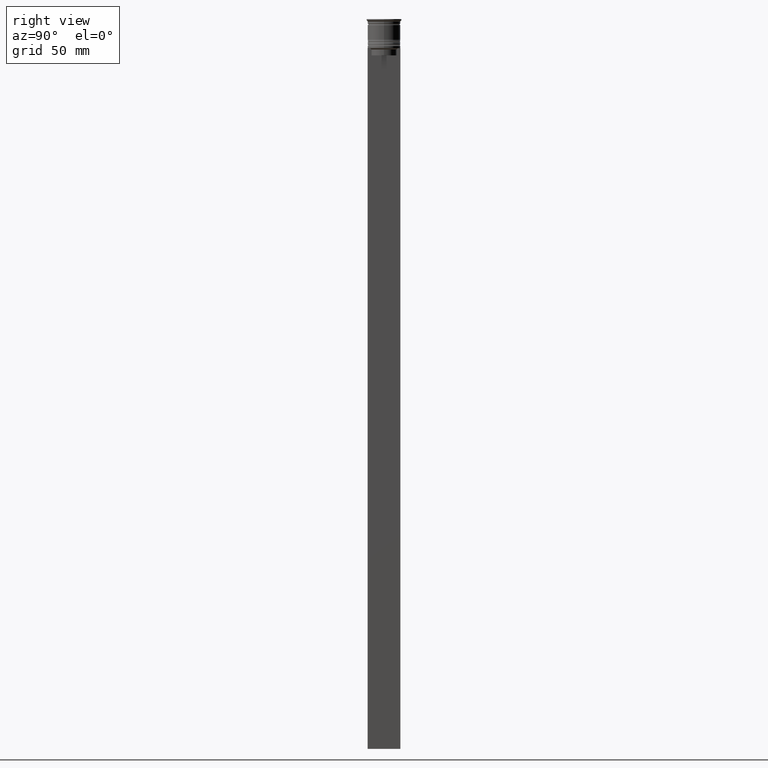
[diagram: clean part render]
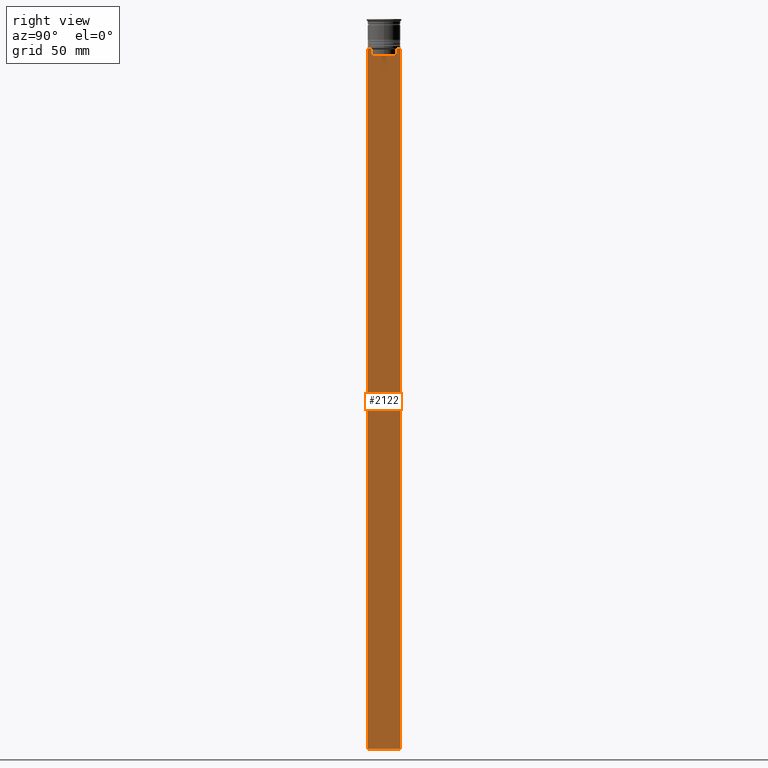
[diagram: same view with one face highlighted and labeled with its STEP entity id]
A machine part, right view. The second image highlights one B-rep face of the part: STEP entity #2122.
In plain terms, the highlighted planar face has unit normal (-1, 0, 0).
Its self-contained STEP definition (entity closure, byte-faithful):
#6 = DIRECTION ( 'NONE',  ( 0.000000000000000000, -1.000000000000000000, 0.000000000000000000 ) ) ;
#20 = EDGE_CURVE ( 'NONE', #1393, #741, #305, .T. ) ;
#125 = PLANE ( 'NONE',  #342 ) ;
#142 = EDGE_CURVE ( 'NONE', #1934, #1393, #2118, .T. ) ;
#176 = LINE ( 'NONE', #923, #461 ) ;
#182 = VERTEX_POINT ( 'NONE', #207 ) ;
#207 = CARTESIAN_POINT ( 'NONE',  ( 0.5000000000000000000, 7.000000000000002665, -312.5000000000000000 ) ) ;
#236 = EDGE_CURVE ( 'NONE', #416, #528, #412, .T. ) ;
#269 = ORIENTED_EDGE ( 'NONE', *, *, #746, .T. ) ;
#305 = B_SPLINE_CURVE_WITH_KNOTS ( 'NONE', 3,
 ( #577, #754, #564, #1685 ),
 .UNSPECIFIED., .F., .F.,
 ( 4, 4 ),
 ( 0.01003009312103698807, 0.01073859663834952557 ),
 .UNSPECIFIED. ) ;
#308 = CARTESIAN_POINT ( 'NONE',  ( 0.5000000000000000000, -6.999999999999997335, -12.50000000000000000 ) ) ;
#318 = EDGE_CURVE ( 'NONE', #385, #416, #333, .T. ) ;
#333 = LINE ( 'NONE', #683, #1247 ) ;
#341 = DIRECTION ( 'NONE',  ( 0.000000000000000000, 1.000000000000000000, 0.000000000000000000 ) ) ;
#342 = AXIS2_PLACEMENT_3D ( 'NONE', #903, #1671, #2247 ) ;
#385 = VERTEX_POINT ( 'NONE', #2430 ) ;
#401 = CARTESIAN_POINT ( 'NONE',  ( 0.5000000000000000000, 7.000000000000002665, -12.50000000000000000 ) ) ;
#403 = ORIENTED_EDGE ( 'NONE', *, *, #142, .T. ) ;
#412 = LINE ( 'NONE', #469, #924 ) ;
#416 = VERTEX_POINT ( 'NONE', #1489 ) ;
#424 = CARTESIAN_POINT ( 'NONE',  ( 0.5000000000000000000, -5.878775382679629402, -12.50000000000000000 ) ) ;
#461 = VECTOR ( 'NONE', #2113, 1000.000000000000000 ) ;
#469 = CARTESIAN_POINT ( 'NONE',  ( 0.5000000000000000000, -6.999999999999997335, -12.50000000000000000 ) ) ;
#492 = CARTESIAN_POINT ( 'NONE',  ( 0.5000000000000000000, 5.376802023508029826, 0.000000000000000000 ) ) ;
#514 = CARTESIAN_POINT ( 'NONE',  ( 0.5000000000000000000, -5.376802023508029826, 0.000000000000000000 ) ) ;
#528 = VERTEX_POINT ( 'NONE', #1918 ) ;
#564 = CARTESIAN_POINT ( 'NONE',  ( 0.5000000000000000000, 5.544156989057553275, -12.83336397825725861 ) ) ;
#567 = ORIENTED_EDGE ( 'NONE', *, *, #1152, .T. ) ;
#577 = CARTESIAN_POINT ( 'NONE',  ( 0.5000000000000000000, 5.878775382679629402, -12.50000000000000000 ) ) ;
#669 = CARTESIAN_POINT ( 'NONE',  ( 0.5000000000000000000, 5.376802023508029826, -13.00000000000000178 ) ) ;
#681 = CARTESIAN_POINT ( 'NONE',  ( 0.5000000000000000000, -6.999999999999997335, -312.5000000000000000 ) ) ;
#683 = CARTESIAN_POINT ( 'NONE',  ( 0.5000000000000000000, -6.999999999999997335, -12.50000000000000000 ) ) ;
#691 = VECTOR ( 'NONE', #1675, 1000.000000000000000 ) ;
#739 = CARTESIAN_POINT ( 'NONE',  ( 0.5000000000000000000, -5.376802023508029826, -15.50000000000000000 ) ) ;
#741 = VERTEX_POINT ( 'NONE', #669 ) ;
#746 = EDGE_CURVE ( 'NONE', #741, #1617, #910, .T. ) ;
#751 = LINE ( 'NONE', #1497, #1575 ) ;
#754 = CARTESIAN_POINT ( 'NONE',  ( 0.5000000000000000000, 5.711478846560141598, -12.66669470477064685 ) ) ;
#756 = ORIENTED_EDGE ( 'NONE', *, *, #2016, .T. ) ;
#768 = EDGE_CURVE ( 'NONE', #828, #182, #2234, .T. ) ;
#775 = ORIENTED_EDGE ( 'NONE', *, *, #1139, .F. ) ;
#783 = CARTESIAN_POINT ( 'NONE',  ( 0.5000000000000000000, -6.999999999999997335, -12.50000000000000000 ) ) ;
#805 = VERTEX_POINT ( 'NONE', #1867 ) ;
#828 = VERTEX_POINT ( 'NONE', #2253 ) ;
#869 = VERTEX_POINT ( 'NONE', #401 ) ;
#870 = LINE ( 'NONE', #514, #691 ) ;
#872 = DIRECTION ( 'NONE',  ( 0.000000000000000000, 0.000000000000000000, -1.000000000000000000 ) ) ;
#903 = CARTESIAN_POINT ( 'NONE',  ( 0.5000000000000000000, -6.999999999999997335, 1.535668847618198329 ) ) ;
#910 = LINE ( 'NONE', #492, #1811 ) ;
#923 = CARTESIAN_POINT ( 'NONE',  ( 0.5000000000000000000, -6.999999999999997335, 1.535668847618198329 ) ) ;
#924 = VECTOR ( 'NONE', #1998, 1000.000000000000000 ) ;
#929 = ORIENTED_EDGE ( 'NONE', *, *, #1399, .T. ) ;
#979 = CARTESIAN_POINT ( 'NONE',  ( 0.5000000000000000000, -5.544156999454441959, -12.83336396790503642 ) ) ;
#1019 = B_SPLINE_CURVE_WITH_KNOTS ( 'NONE', 3,
 ( #1874, #979, #1395, #424 ),
 .UNSPECIFIED., .F., .F.,
 ( 4, 4 ),
 ( 0.02539176325380714666, 0.02610162431828674801 ),
 .UNSPECIFIED. ) ;
#1139 = EDGE_CURVE ( 'NONE', #869, #182, #2240, .T. ) ;
#1152 = EDGE_CURVE ( 'NONE', #1706, #805, #870, .T. ) ;
#1158 = CARTESIAN_POINT ( 'NONE',  ( 0.5000000000000000000, 5.878775382679629402, -12.50000000000000000 ) ) ;
#1215 = CARTESIAN_POINT ( 'NONE',  ( 0.5000000000000000000, 6.881860213634102053, -12.50000000000000000 ) ) ;
#1235 = CARTESIAN_POINT ( 'NONE',  ( 0.5000000000000000000, 7.000000000000002665, 1.535668847618198329 ) ) ;
#1247 = VECTOR ( 'NONE', #2404, 1000.000000000000000 ) ;
#1361 = ORIENTED_EDGE ( 'NONE', *, *, #236, .T. ) ;
#1366 = EDGE_CURVE ( 'NONE', #1617, #1706, #751, .T. ) ;
#1393 = VERTEX_POINT ( 'NONE', #1158 ) ;
#1395 = CARTESIAN_POINT ( 'NONE',  ( 0.5000000000000000000, -5.711478856069293286, -12.66669469529570335 ) ) ;
#1399 = EDGE_CURVE ( 'NONE', #805, #385, #1019, .T. ) ;
#1417 = EDGE_LOOP ( 'NONE', ( #403, #1909, #269, #1814, #567, #929, #1677, #1361, #1533, #1556, #775, #756 ) ) ;
#1489 = CARTESIAN_POINT ( 'NONE',  ( 0.5000000000000000000, -6.881860213634102053, -12.50000000000000000 ) ) ;
#1497 = CARTESIAN_POINT ( 'NONE',  ( 0.5000000000000000000, 5.400000000000003908, -15.50000000000000000 ) ) ;
#1518 = DIRECTION ( 'NONE',  ( 0.000000000000000000, -1.000000000000000000, 0.000000000000000000 ) ) ;
#1533 = ORIENTED_EDGE ( 'NONE', *, *, #2156, .T. ) ;
#1540 = VECTOR ( 'NONE', #2385, 1000.000000000000000 ) ;
#1556 = ORIENTED_EDGE ( 'NONE', *, *, #768, .T. ) ;
#1575 = VECTOR ( 'NONE', #1518, 1000.000000000000000 ) ;
#1617 = VERTEX_POINT ( 'NONE', #1634 ) ;
#1624 = DIRECTION ( 'NONE',  ( 0.000000000000000000, 0.000000000000000000, -1.000000000000000000 ) ) ;
#1634 = CARTESIAN_POINT ( 'NONE',  ( 0.5000000000000000000, 5.376802023508029826, -15.50000000000000000 ) ) ;
#1671 = DIRECTION ( 'NONE',  ( -1.000000000000000000, 0.000000000000000000, 0.000000000000000000 ) ) ;
#1675 = DIRECTION ( 'NONE',  ( -0.000000000000000000, -0.000000000000000000, 1.000000000000000000 ) ) ;
#1677 = ORIENTED_EDGE ( 'NONE', *, *, #318, .T. ) ;
#1685 = CARTESIAN_POINT ( 'NONE',  ( 0.5000000000000000000, 5.376802023508029826, -13.00000000000000178 ) ) ;
#1706 = VERTEX_POINT ( 'NONE', #739 ) ;
#1736 = VECTOR ( 'NONE', #1624, 1000.000000000000000 ) ;
#1811 = VECTOR ( 'NONE', #872, 1000.000000000000000 ) ;
#1814 = ORIENTED_EDGE ( 'NONE', *, *, #1366, .T. ) ;
#1816 = VECTOR ( 'NONE', #341, 1000.000000000000000 ) ;
#1844 = LINE ( 'NONE', #308, #1540 ) ;
#1867 = CARTESIAN_POINT ( 'NONE',  ( 0.5000000000000000000, -5.376802023508029826, -13.00000000000000178 ) ) ;
#1874 = CARTESIAN_POINT ( 'NONE',  ( 0.5000000000000000000, -5.376802023508029826, -13.00000000000000178 ) ) ;
#1909 = ORIENTED_EDGE ( 'NONE', *, *, #20, .T. ) ;
#1918 = CARTESIAN_POINT ( 'NONE',  ( 0.5000000000000000000, -6.999999999999997335, -12.50000000000000000 ) ) ;
#1934 = VERTEX_POINT ( 'NONE', #1215 ) ;
#1935 = VECTOR ( 'NONE', #6, 1000.000000000000000 ) ;
#1998 = DIRECTION ( 'NONE',  ( 0.000000000000000000, -1.000000000000000000, 0.000000000000000000 ) ) ;
#2016 = EDGE_CURVE ( 'NONE', #869, #1934, #1844, .T. ) ;
#2050 = FACE_OUTER_BOUND ( 'NONE', #1417, .T. ) ;
#2113 = DIRECTION ( 'NONE',  ( 0.000000000000000000, 0.000000000000000000, -1.000000000000000000 ) ) ;
#2118 = LINE ( 'NONE', #783, #1935 ) ;
#2122 = ADVANCED_FACE ( 'NONE', ( #2050 ), #125, .F. ) ;
#2156 = EDGE_CURVE ( 'NONE', #528, #828, #176, .T. ) ;
#2234 = LINE ( 'NONE', #681, #1816 ) ;
#2240 = LINE ( 'NONE', #1235, #1736 ) ;
#2247 = DIRECTION ( 'NONE',  ( 0.000000000000000000, 0.000000000000000000, 1.000000000000000000 ) ) ;
#2253 = CARTESIAN_POINT ( 'NONE',  ( 0.5000000000000000000, -6.999999999999997335, -312.5000000000000000 ) ) ;
#2385 = DIRECTION ( 'NONE',  ( 0.000000000000000000, -1.000000000000000000, 0.000000000000000000 ) ) ;
#2404 = DIRECTION ( 'NONE',  ( 0.000000000000000000, -1.000000000000000000, 0.000000000000000000 ) ) ;
#2430 = CARTESIAN_POINT ( 'NONE',  ( 0.5000000000000000000, -5.878775382679629402, -12.50000000000000000 ) ) ;